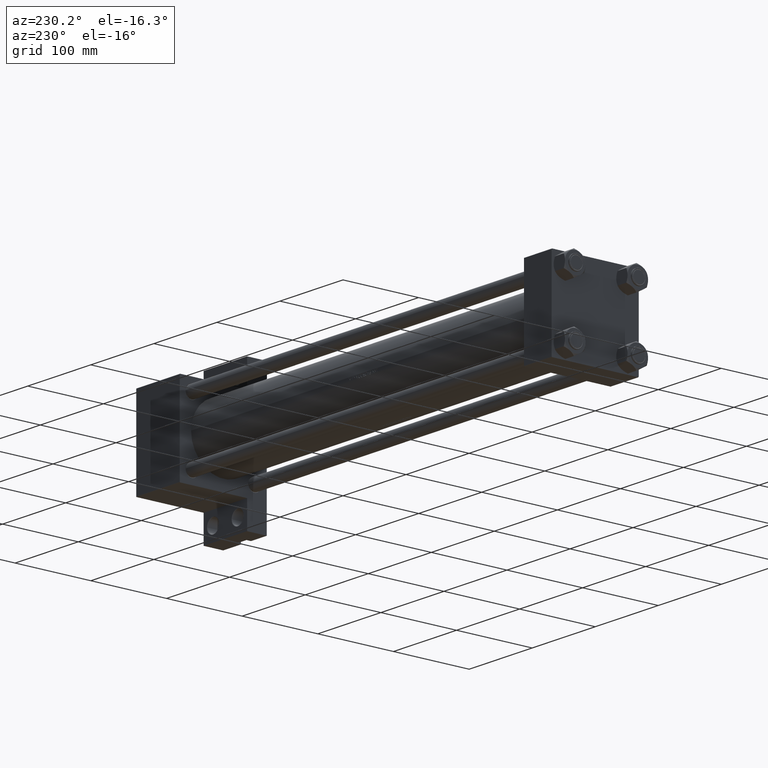
[diagram: clean part render]
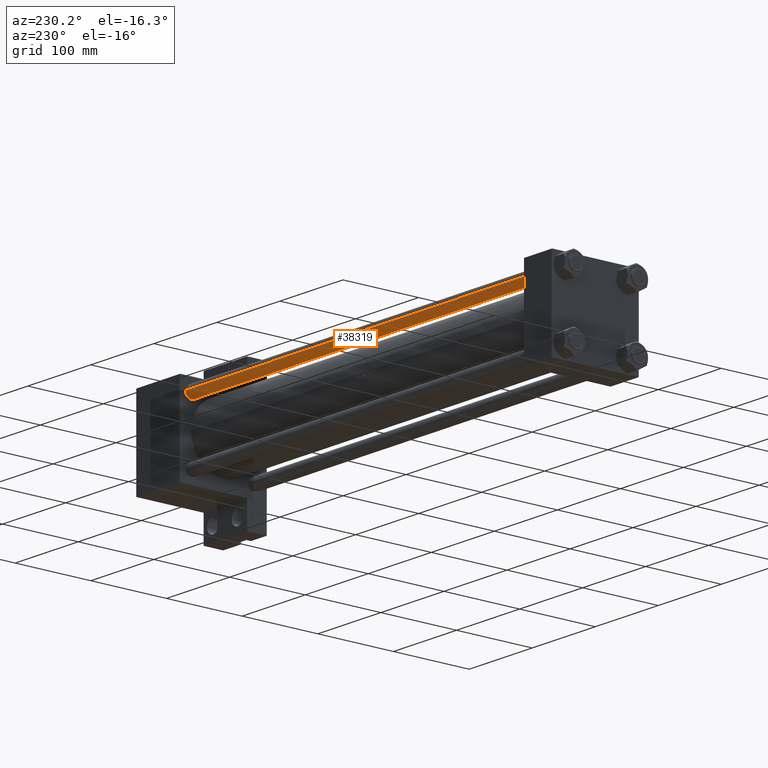
[diagram: same view with one face highlighted and labeled with its STEP entity id]
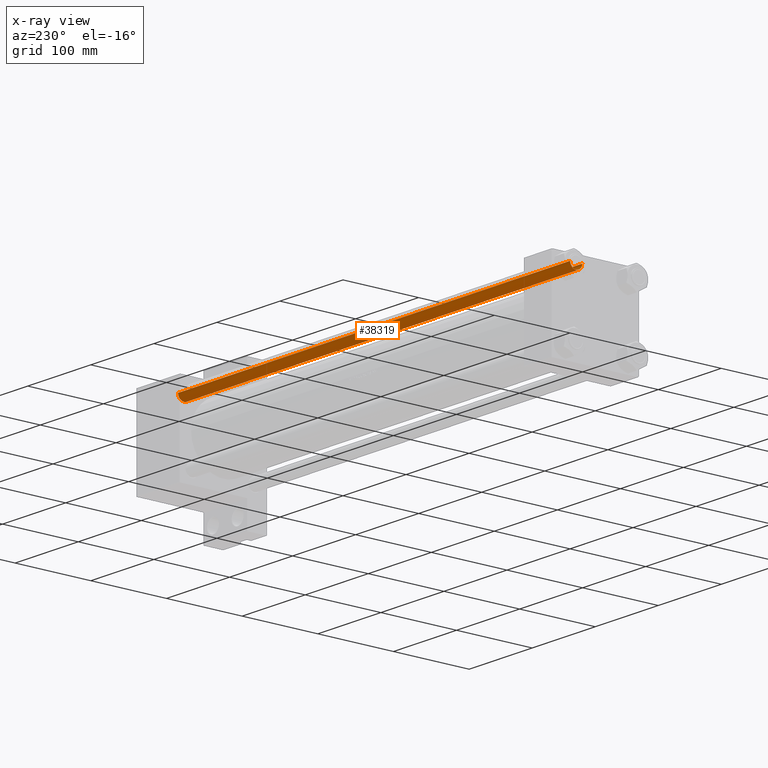
[diagram: x-ray of the same camera — body ghosted, the highlighted face saturated]
A machine part, auxiliary view. The second image highlights one B-rep face of the part: STEP entity #38319.
The next image is the same camera in x-ray: the body ghosted, the highlighted face saturated — about 0% of this face is hidden behind the body in this view.
In plain terms, the highlighted cylindrical surface (edge-blend (fillet) strip) has radius 8 mm, axis along (1, -0, 0).
Its self-contained STEP definition (entity closure, byte-faithful):
#96 = VERTEX_POINT ( 'NONE', #5248 ) ;
#1360 = CARTESIAN_POINT ( 'NONE',  ( -8.000000000000000000, 0.000000000000000000, 623.0000000000000000 ) ) ;
#2109 = CIRCLE ( 'NONE', #47952, 8.000000000000000000 ) ;
#2701 = CARTESIAN_POINT ( 'NONE',  ( 8.000000000000000000, 9.797174393178825657E-16, 622.5000000000000000 ) ) ;
#3484 = CIRCLE ( 'NONE', #21338, 8.000000000000000000 ) ;
#5248 = CARTESIAN_POINT ( 'NONE',  ( 8.000000000000000000, 9.797174393178825657E-16, 0.4999999999999449329 ) ) ;
#5257 = DIRECTION ( 'NONE',  ( -0.000000000000000000, -0.000000000000000000, -1.000000000000000000 ) ) ;
#5290 = EDGE_CURVE ( 'NONE', #16676, #15850, #3484, .T. ) ;
#6071 = VECTOR ( 'NONE', #30191, 1000.000000000000000 ) ;
#6402 = AXIS2_PLACEMENT_3D ( 'NONE', #37587, #7933, #11589 ) ;
#7933 = DIRECTION ( 'NONE',  ( -0.000000000000000000, -0.000000000000000000, -1.000000000000000000 ) ) ;
#9538 = DIRECTION ( 'NONE',  ( 1.000000000000000000, 0.000000000000000000, 0.000000000000000000 ) ) ;
#10162 = CARTESIAN_POINT ( 'NONE',  ( 0.000000000000000000, 0.000000000000000000, 622.5000000000000000 ) ) ;
#10646 = DIRECTION ( 'NONE',  ( 0.000000000000000000, 0.000000000000000000, -1.000000000000000000 ) ) ;
#11589 = DIRECTION ( 'NONE',  ( -1.000000000000000000, 0.000000000000000000, 0.000000000000000000 ) ) ;
#15850 = VERTEX_POINT ( 'NONE', #2701 ) ;
#16676 = VERTEX_POINT ( 'NONE', #42599 ) ;
#17191 = ORIENTED_EDGE ( 'NONE', *, *, #5290, .T. ) ;
#17550 = ORIENTED_EDGE ( 'NONE', *, *, #30479, .T. ) ;
#18384 = CYLINDRICAL_SURFACE ( 'NONE', #6402, 8.000000000000000000 ) ;
#19256 = LINE ( 'NONE', #34079, #6071 ) ;
#21338 = AXIS2_PLACEMENT_3D ( 'NONE', #10162, #10646, #46872 ) ;
#24373 = ORIENTED_EDGE ( 'NONE', *, *, #24729, .T. ) ;
#24729 = EDGE_CURVE ( 'NONE', #96, #45375, #2109, .T. ) ;
#25713 = VECTOR ( 'NONE', #5257, 1000.000000000000000 ) ;
#30191 = DIRECTION ( 'NONE',  ( -0.000000000000000000, -0.000000000000000000, -1.000000000000000000 ) ) ;
#30479 = EDGE_CURVE ( 'NONE', #15850, #96, #19256, .T. ) ;
#34079 = CARTESIAN_POINT ( 'NONE',  ( 8.000000000000000000, 9.797174393178825657E-16, 623.0000000000000000 ) ) ;
#35347 = ORIENTED_EDGE ( 'NONE', *, *, #44584, .F. ) ;
#37501 = CARTESIAN_POINT ( 'NONE',  ( -8.000000000000000000, 0.000000000000000000, 0.4999999999999449329 ) ) ;
#37587 = CARTESIAN_POINT ( 'NONE',  ( 0.000000000000000000, 0.000000000000000000, 623.0000000000000000 ) ) ;
#38319 = ADVANCED_FACE ( 'NONE', ( #40267 ), #18384, .T. ) ;
#38578 = LINE ( 'NONE', #1360, #25713 ) ;
#40267 = FACE_OUTER_BOUND ( 'NONE', #41203, .T. ) ;
#41203 = EDGE_LOOP ( 'NONE', ( #17191, #17550, #24373, #35347 ) ) ;
#42599 = CARTESIAN_POINT ( 'NONE',  ( -8.000000000000000000, 0.000000000000000000, 622.5000000000000000 ) ) ;
#43086 = DIRECTION ( 'NONE',  ( -0.000000000000000000, -0.000000000000000000, 1.000000000000000000 ) ) ;
#44584 = EDGE_CURVE ( 'NONE', #16676, #45375, #38578, .T. ) ;
#45375 = VERTEX_POINT ( 'NONE', #37501 ) ;
#46872 = DIRECTION ( 'NONE',  ( 1.000000000000000000, 0.000000000000000000, 0.000000000000000000 ) ) ;
#47460 = CARTESIAN_POINT ( 'NONE',  ( 0.000000000000000000, 0.000000000000000000, 0.4999999999999449329 ) ) ;
#47952 = AXIS2_PLACEMENT_3D ( 'NONE', #47460, #43086, #9538 ) ;